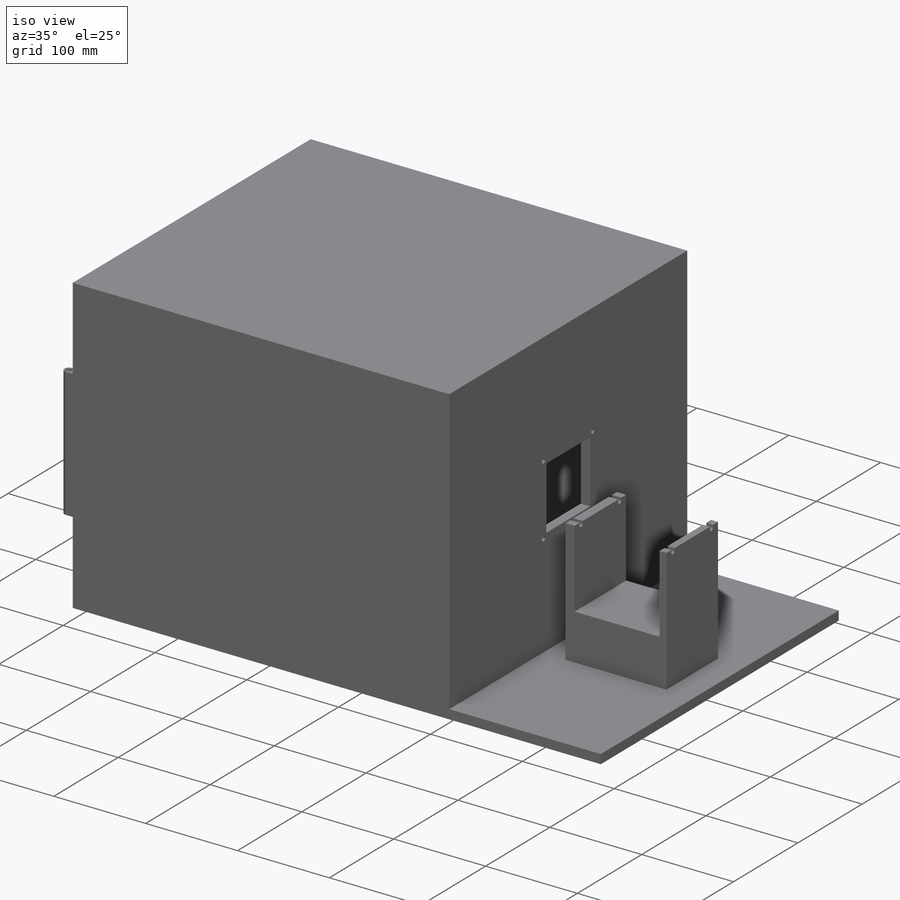
[diagram: iso view]
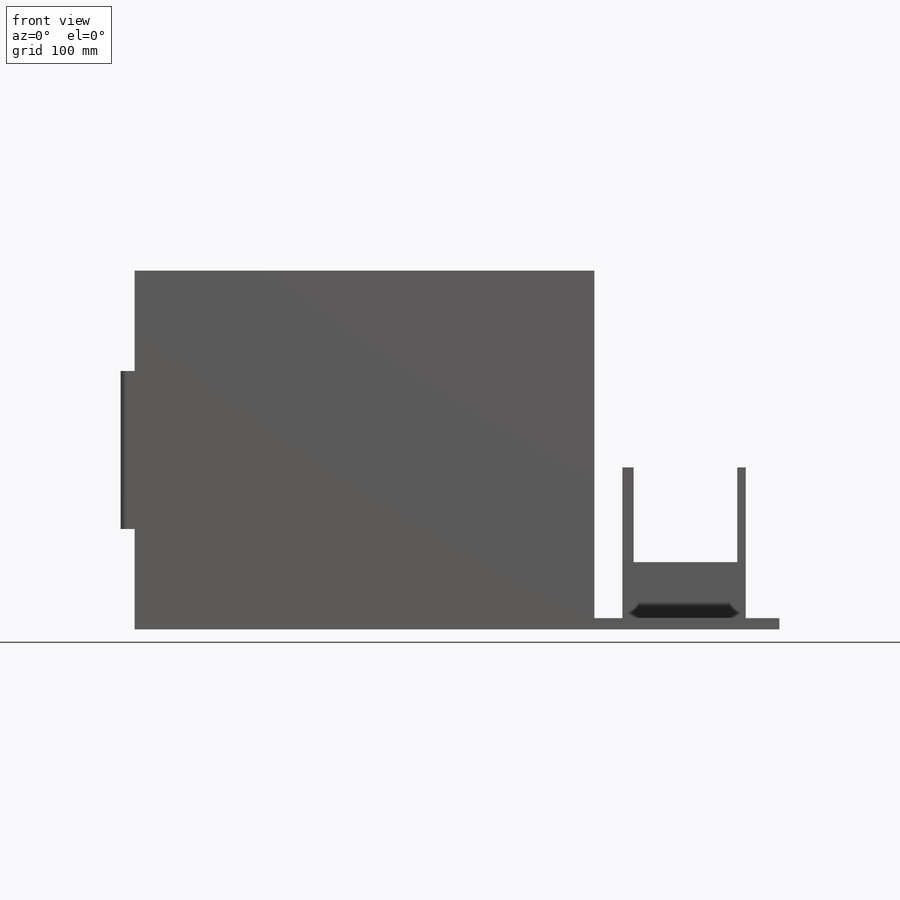
[diagram: front view]
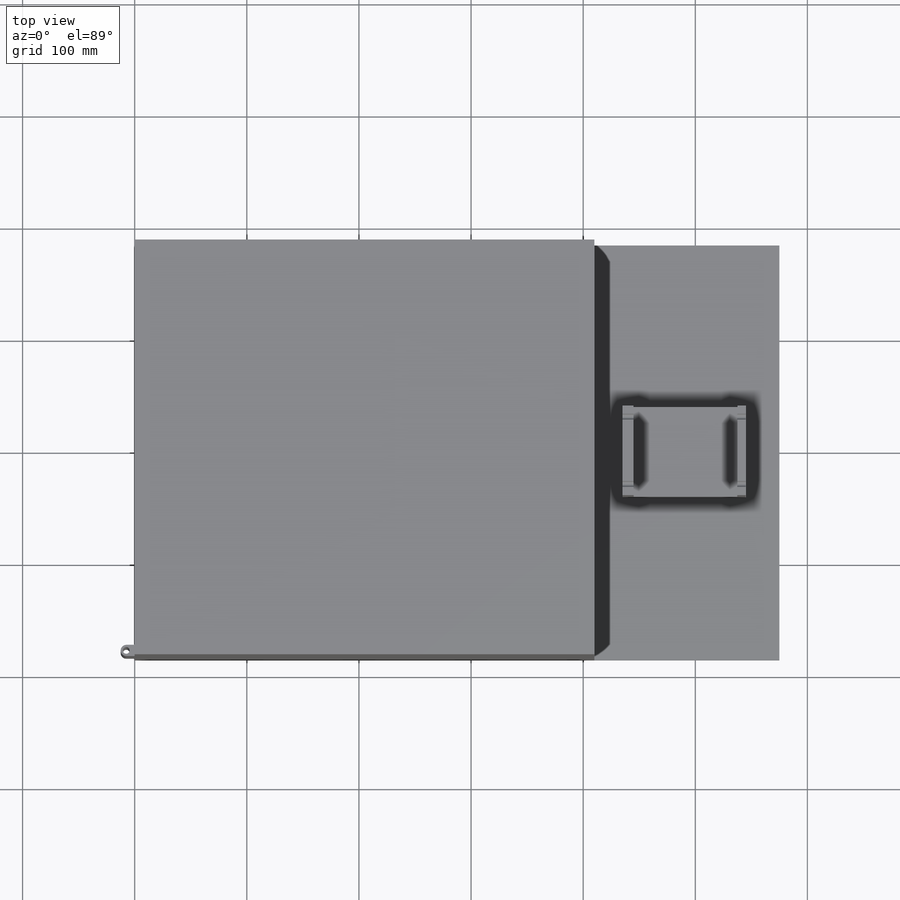
[diagram: top view]
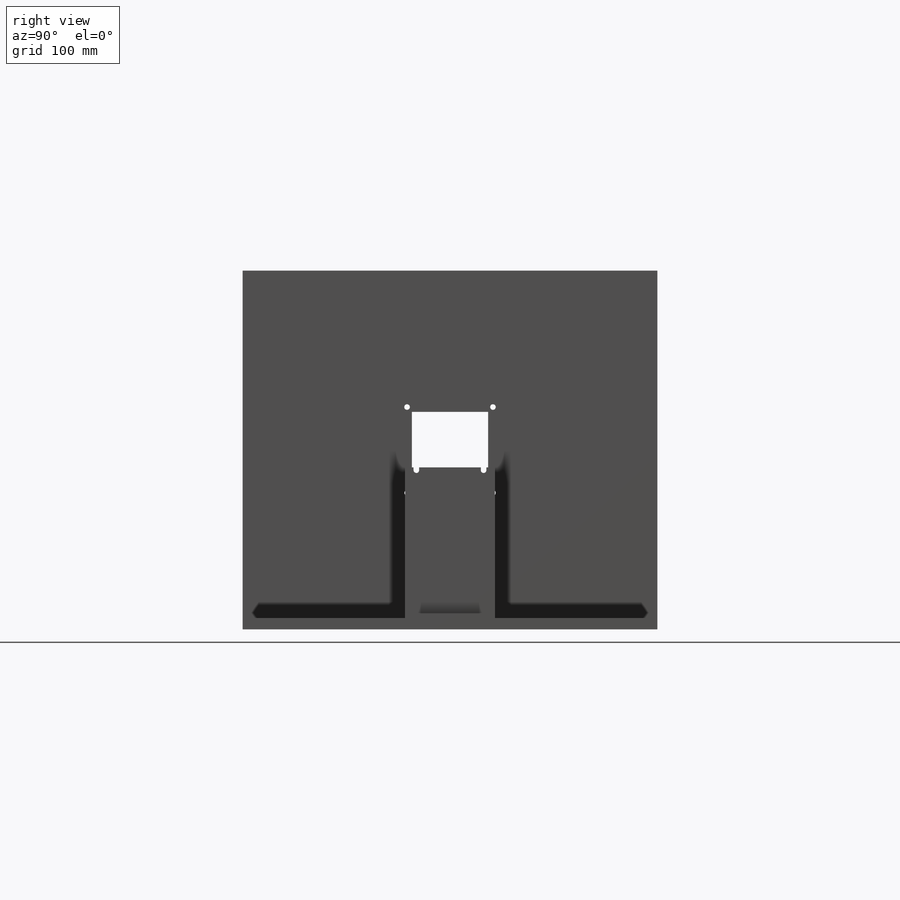
[diagram: right view]
SOLIDWORKS PART (.sldprt)
format: sldprt  version: not decoded by parser v0  size: 668,672 bytes
history: native  units: mm
features: sketch x14, extrude x8, cut_extrude x6, material x1 (+13 scaffold rows collapsed)
feature tree (42):
  scaffold x13  (default folders/planes/origin — collapsed)
  material  "Material <not specified>"
  sketch  "Sketch1"  dims[c1.D1=300.0mm c1.D2=350.0mm c2.D1=10.0mm]
  extrude  "Boss-Extrude1"  Depth=300mm
  sketch  "Sketch2"  dims[D1=160.0mm]
  extrude  "Boss-Extrude2"  Depth=10mm
  sketch  "Sketch3"  dims[D1=10.0mm]
  cut_extrude  "Cut-Extrude1"  [1 undecoded]
  sketch  "Sketch6"  dims[D1=68.0mm]
  cut_extrude  "Cut-Extrude3"  [1 undecoded]
  sketch  "Sketch7"  dims[D1=80.0mm]
  extrude  "Boss-Extrude3"  Depth=134.5mm
  sketch  "Sketch8"  dims[D1=30.0mm]
  cut_extrude  "Cut-Extrude4"  [1 undecoded]
  sketch  "Sketch9"  dims[D1=5.0mm]
  extrude  "Boss-Extrude4"  [1 undecoded]
  sketch  "Sketch10"
  cut_extrude  "Cut-Extrude5"  [1 undecoded]
  sketch  "Sketch11"  dims[D1=5.0mm]
  extrude  "Boss-Extrude5"  [1 undecoded]
  sketch  "Sketch12"
  extrude  "Boss-Extrude6"  Depth=50mm
  sketch  "Sketch13"
  cut_extrude  "Cut-Extrude6"  Depth=50mm
  sketch  "Sketch15"
  extrude  "Boss-Extrude7"  Depth=10mm
  sketch  "Sketch16"  dims[D1=30.0mm]
  extrude  "Boss-Extrude8"  [1 undecoded]
  sketch  "Sketch17"  dims[D1=~3.395418mm]
  cut_extrude  "Cut-Extrude7"  [1 undecoded]
decode coverage: 16 of 28 modeling features carry decoded parameters
note: ~ marks probable driven/reference dimensions
note: 8 parameter values undecoded
summary: no parameter record found for 8 features
note: suppression state not decoded; provenance and decode notes live in map.json
